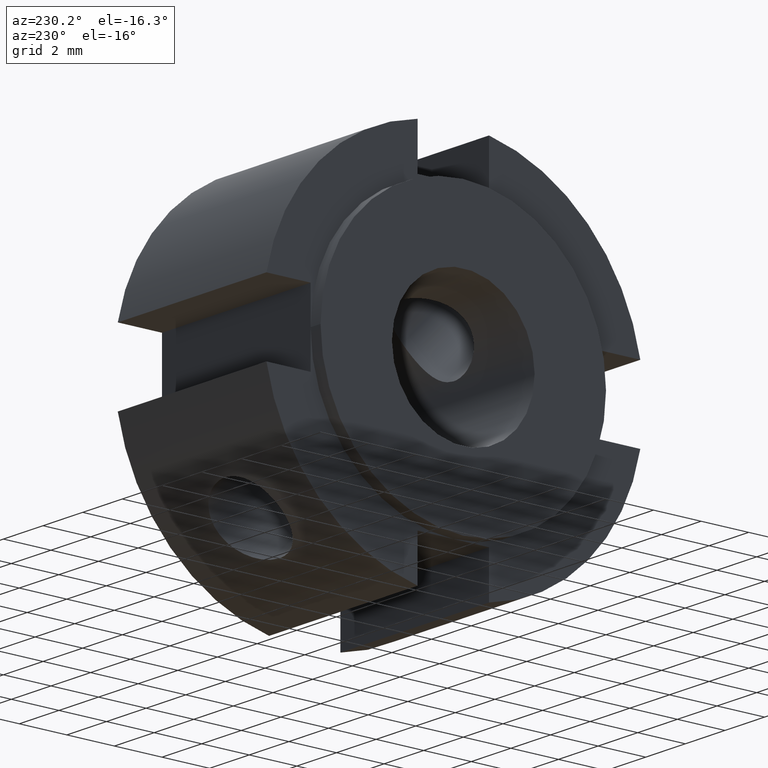
[diagram: clean part render]
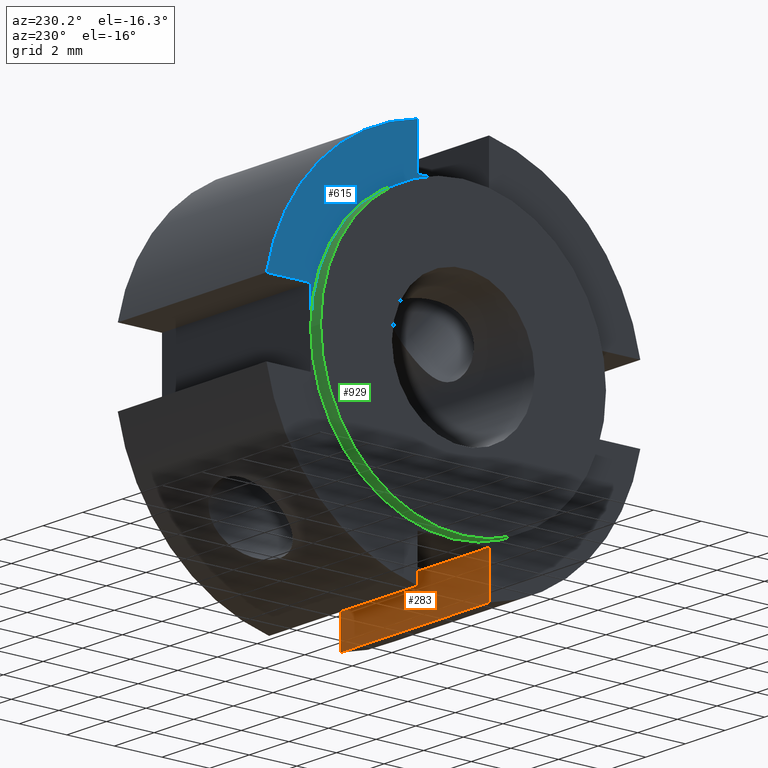
[diagram: same view with three faces highlighted in distinct colors, each labeled with its STEP entity id]
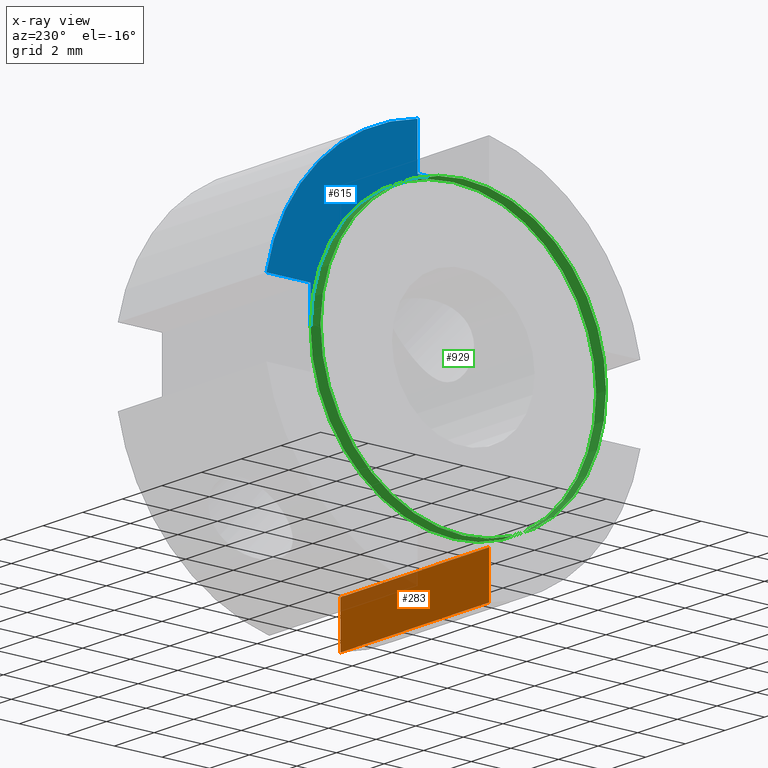
[diagram: x-ray of the same camera — body ghosted, the three highlighted faces saturated]
A machine part, auxiliary view with three faces highlighted in distinct colors.
The next image is the same camera in x-ray (body ghosted, the three faces saturated) — at least one of them is partly hidden behind the body in this view.
Their STEP definitions:

[orange] entity #283 — the highlighted planar face has unit normal (0, -1, 0).
#244=CARTESIAN_POINT('',(7.999999999999998,-1.500000000000002,-5.999999999999996));
#245=DIRECTION('',(0.0,-1.0,0.0));
#246=DIRECTION('',(-1.0,0.0,0.0));
#247=AXIS2_PLACEMENT_3D('',#244,#245,#246);
#248=PLANE('',#247);
#249=CARTESIAN_POINT('',(0.500000000000000,-1.500000000000002,-5.999999999999996));
#250=VERTEX_POINT('',#249);
#251=CARTESIAN_POINT('',(0.499999999999998,-1.500000000000001,-7.858116822750851));
#252=VERTEX_POINT('',#251);
#253=CARTESIAN_POINT('',(0.500000000000000,-1.500000000000002,-5.999999999999996));
#254=DIRECTION('',(0.0,0.0,-1.0));
#255=VECTOR('',#254,1.858116822750855);
#256=LINE('',#253,#255);
#257=EDGE_CURVE('',#250,#252,#256,.T.);
#258=ORIENTED_EDGE('',*,*,#257,.F.);
#259=CARTESIAN_POINT('',(7.999999999999998,-1.500000000000002,-5.999999999999996));
#260=VERTEX_POINT('',#259);
#261=CARTESIAN_POINT('',(7.999999999999998,-1.500000000000002,-5.999999999999996));
#262=DIRECTION('',(-1.0,0.0,0.0));
#263=VECTOR('',#262,7.499999999999998);
#264=LINE('',#261,#263);
#265=EDGE_CURVE('',#260,#250,#264,.T.);
#266=ORIENTED_EDGE('',*,*,#265,.F.);
#267=CARTESIAN_POINT('',(7.999999999999998,-1.500000000000002,-7.858116822750851));
#268=VERTEX_POINT('',#267);
#269=CARTESIAN_POINT('',(7.999999999999998,-1.500000000000002,-7.858116822750851));
#270=DIRECTION('',(0.0,0.0,1.0));
#271=VECTOR('',#270,1.858116822750855);
#272=LINE('',#269,#271);
#273=EDGE_CURVE('',#268,#260,#272,.T.);
#274=ORIENTED_EDGE('',*,*,#273,.F.);
#275=CARTESIAN_POINT('',(0.499999999999998,-1.500000000000002,-7.858116822750851));
#276=DIRECTION('',(1.0,0.0,0.0));
#277=VECTOR('',#276,7.500000000000000);
#278=LINE('',#275,#277);
#279=EDGE_CURVE('',#252,#268,#278,.T.);
#280=ORIENTED_EDGE('',*,*,#279,.F.);
#281=EDGE_LOOP('',(#258,#266,#274,#280));
#282=FACE_OUTER_BOUND('',#281,.T.);
#283=ADVANCED_FACE('',(#282),#248,.F.);

[blue] entity #615 — the highlighted planar face has unit normal (-1, 0, 0).
#469=CARTESIAN_POINT('',(0.500000000000000,1.500000000000001,5.999999999999996));
#470=VERTEX_POINT('',#469);
#471=CARTESIAN_POINT('',(0.499999999999998,1.500000000000000,7.858116822750851));
#472=VERTEX_POINT('',#471);
#473=CARTESIAN_POINT('',(0.500000000000000,1.500000000000001,5.999999999999996));
#474=DIRECTION('',(0.0,0.0,1.0));
#475=VECTOR('',#474,1.858116822750855);
#476=LINE('',#473,#475);
#477=EDGE_CURVE('',#470,#472,#476,.T.);
#549=CARTESIAN_POINT('',(0.500000000000000,3.469447E-016,5.999999999999996));
#550=VERTEX_POINT('',#549);
#565=CARTESIAN_POINT('',(0.500000000000000,4.440892E-016,5.999999999999996));
#566=DIRECTION('',(0.0,1.0,0.0));
#567=VECTOR('',#566,1.500000000000000);
#568=LINE('',#565,#567);
#569=EDGE_CURVE('',#550,#470,#568,.T.);
#574=CARTESIAN_POINT('',(0.500000000000000,6.999999999999997,0.0));
#575=DIRECTION('',(-1.0,0.0,0.0));
#576=DIRECTION('',(0.0,0.0,1.0));
#577=AXIS2_PLACEMENT_3D('',#574,#575,#576);
#578=PLANE('',#577);
#579=ORIENTED_EDGE('',*,*,#569,.T.);
#580=ORIENTED_EDGE('',*,*,#477,.T.);
#581=CARTESIAN_POINT('',(0.499999999999998,7.858116822750851,1.500000000000000));
#582=VERTEX_POINT('',#581);
#583=CARTESIAN_POINT('',(0.499999999999998,0.0,0.0));
#584=DIRECTION('',(1.0,0.0,0.0));
#585=DIRECTION('',(0.0,1.0,0.0));
#586=AXIS2_PLACEMENT_3D('',#583,#584,#585);
#587=CIRCLE('',#586,7.999999999999996);
#588=EDGE_CURVE('',#582,#472,#587,.T.);
#589=ORIENTED_EDGE('',*,*,#588,.F.);
#590=CARTESIAN_POINT('',(0.500000000000000,5.999999999999996,1.500000000000000));
#591=VERTEX_POINT('',#590);
#592=CARTESIAN_POINT('',(0.500000000000000,7.858116822750851,1.500000000000000));
#593=DIRECTION('',(0.0,-1.0,0.0));
#594=VECTOR('',#593,1.858116822750855);
#595=LINE('',#592,#594);
#596=EDGE_CURVE('',#582,#591,#595,.T.);
#597=ORIENTED_EDGE('',*,*,#596,.T.);
#598=CARTESIAN_POINT('',(0.500000000000003,5.999999999999997,0.0));
#599=VERTEX_POINT('',#598);
#600=CARTESIAN_POINT('',(0.500000000000000,5.999999999999996,1.500000000000000));
#601=DIRECTION('',(0.0,0.0,-1.0));
#602=VECTOR('',#601,1.500000000000000);
#603=LINE('',#600,#602);
#604=EDGE_CURVE('',#591,#599,#603,.T.);
#605=ORIENTED_EDGE('',*,*,#604,.T.);
#606=CARTESIAN_POINT('',(0.500000000000003,0.0,0.0));
#607=DIRECTION('',(1.0,0.0,0.0));
#608=DIRECTION('',(0.0,1.0,0.0));
#609=AXIS2_PLACEMENT_3D('',#606,#607,#608);
#610=CIRCLE('',#609,5.999999999999997);
#611=EDGE_CURVE('',#599,#550,#610,.T.);
#612=ORIENTED_EDGE('',*,*,#611,.T.);
#613=EDGE_LOOP('',(#579,#580,#589,#597,#605,#612));
#614=FACE_OUTER_BOUND('',#613,.T.);
#615=ADVANCED_FACE('',(#614),#578,.T.);

[green] entity #929 — the highlighted cylindrical surface (bore or boss wall) has radius 6 mm, axis along (1, 0, 0).
#329=CARTESIAN_POINT('',(0.500000000000000,-1.110223E-015,-5.999999999999996));
#330=VERTEX_POINT('',#329);
#439=CARTESIAN_POINT('',(0.500000000000000,-5.999999999999996,7.632783E-016));
#440=VERTEX_POINT('',#439);
#549=CARTESIAN_POINT('',(0.500000000000000,3.469447E-016,5.999999999999996));
#550=VERTEX_POINT('',#549);
#598=CARTESIAN_POINT('',(0.500000000000003,5.999999999999997,0.0));
#599=VERTEX_POINT('',#598);
#606=CARTESIAN_POINT('',(0.500000000000003,0.0,0.0));
#607=DIRECTION('',(1.0,0.0,0.0));
#608=DIRECTION('',(0.0,1.0,0.0));
#609=AXIS2_PLACEMENT_3D('',#606,#607,#608);
#610=CIRCLE('',#609,5.999999999999997);
#611=EDGE_CURVE('',#599,#550,#610,.T.);
#632=CARTESIAN_POINT('',(0.500000000000003,0.0,0.0));
#633=DIRECTION('',(1.0,0.0,0.0));
#634=DIRECTION('',(0.0,1.0,0.0));
#635=AXIS2_PLACEMENT_3D('',#632,#633,#634);
#636=CIRCLE('',#635,5.999999999999997);
#637=EDGE_CURVE('',#550,#440,#636,.T.);
#658=CARTESIAN_POINT('',(0.500000000000003,0.0,0.0));
#659=DIRECTION('',(1.0,0.0,0.0));
#660=DIRECTION('',(0.0,1.0,0.0));
#661=AXIS2_PLACEMENT_3D('',#658,#659,#660);
#662=CIRCLE('',#661,5.999999999999997);
#663=EDGE_CURVE('',#440,#330,#662,.T.);
#886=CARTESIAN_POINT('',(0.0,5.999999999999997,0.0));
#887=VERTEX_POINT('',#886);
#888=CARTESIAN_POINT('',(0.0,0.0,0.0));
#889=DIRECTION('',(1.0,0.0,0.0));
#890=DIRECTION('',(0.0,1.0,0.0));
#891=AXIS2_PLACEMENT_3D('',#888,#889,#890);
#892=CIRCLE('',#891,5.999999999999997);
#893=EDGE_CURVE('',#887,#887,#892,.T.);
#909=CARTESIAN_POINT('',(0.250000000000001,0.0,0.0));
#910=DIRECTION('',(1.0,0.0,0.0));
#911=DIRECTION('',(0.0,1.0,0.0));
#912=AXIS2_PLACEMENT_3D('',#909,#910,#911);
#913=CYLINDRICAL_SURFACE('',#912,5.999999999999997);
#914=ORIENTED_EDGE('',*,*,#611,.F.);
#915=CARTESIAN_POINT('',(0.500000000000003,0.0,0.0));
#916=DIRECTION('',(1.0,0.0,0.0));
#917=DIRECTION('',(0.0,1.0,0.0));
#918=AXIS2_PLACEMENT_3D('',#915,#916,#917);
#919=CIRCLE('',#918,5.999999999999997);
#920=EDGE_CURVE('',#330,#599,#919,.T.);
#921=ORIENTED_EDGE('',*,*,#920,.F.);
#922=ORIENTED_EDGE('',*,*,#663,.F.);
#923=ORIENTED_EDGE('',*,*,#637,.F.);
#924=EDGE_LOOP('',(#914,#921,#922,#923));
#925=FACE_OUTER_BOUND('',#924,.T.);
#926=ORIENTED_EDGE('',*,*,#893,.T.);
#927=EDGE_LOOP('',(#926));
#928=FACE_BOUND('',#927,.T.);
#929=ADVANCED_FACE('',(#925,#928),#913,.T.);